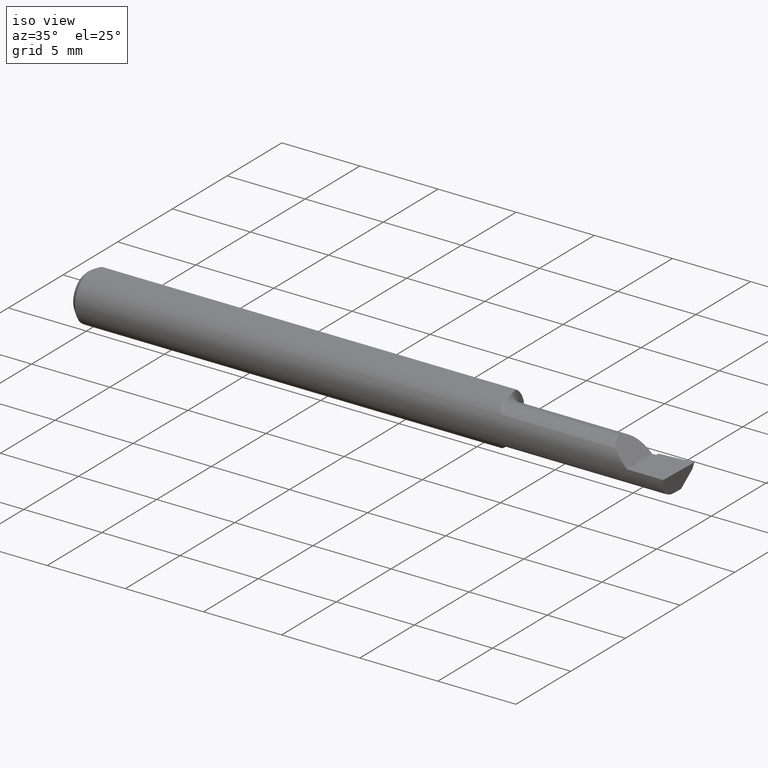
[diagram: clean part render]
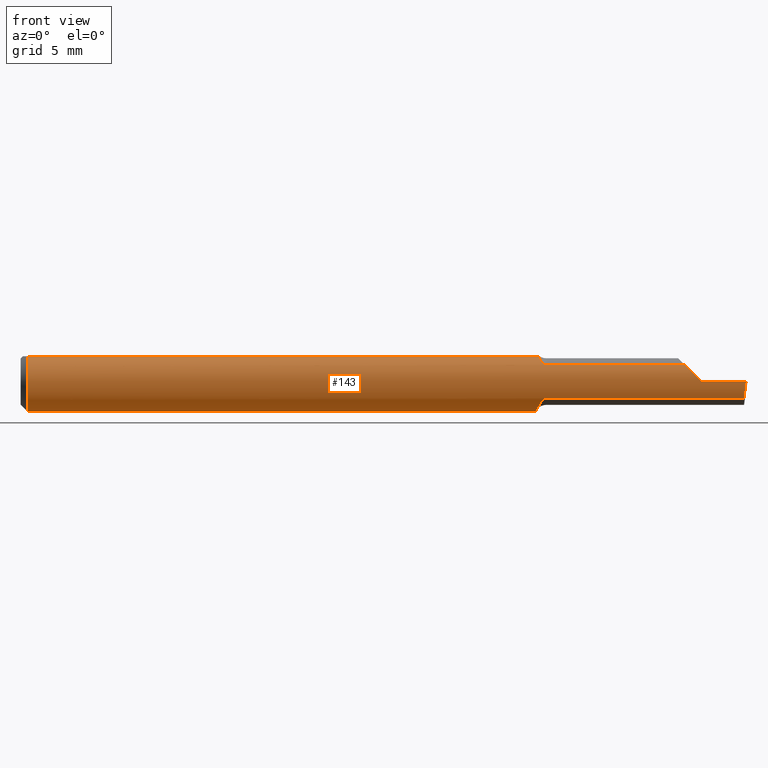
[diagram: tour spotlight — one face highlighted and labeled with its STEP entity id]
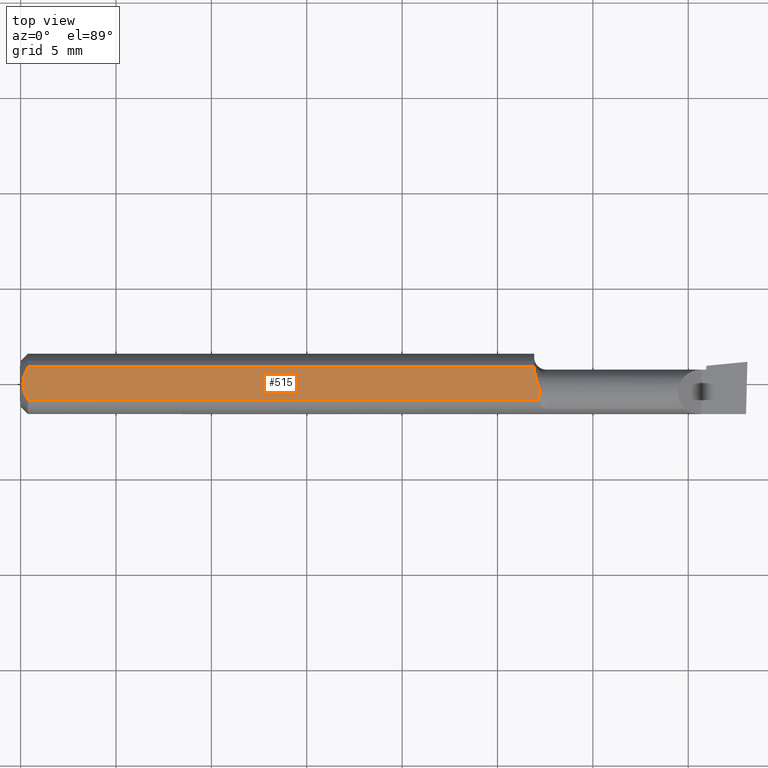
[diagram: tour spotlight — one face highlighted and labeled with its STEP entity id]
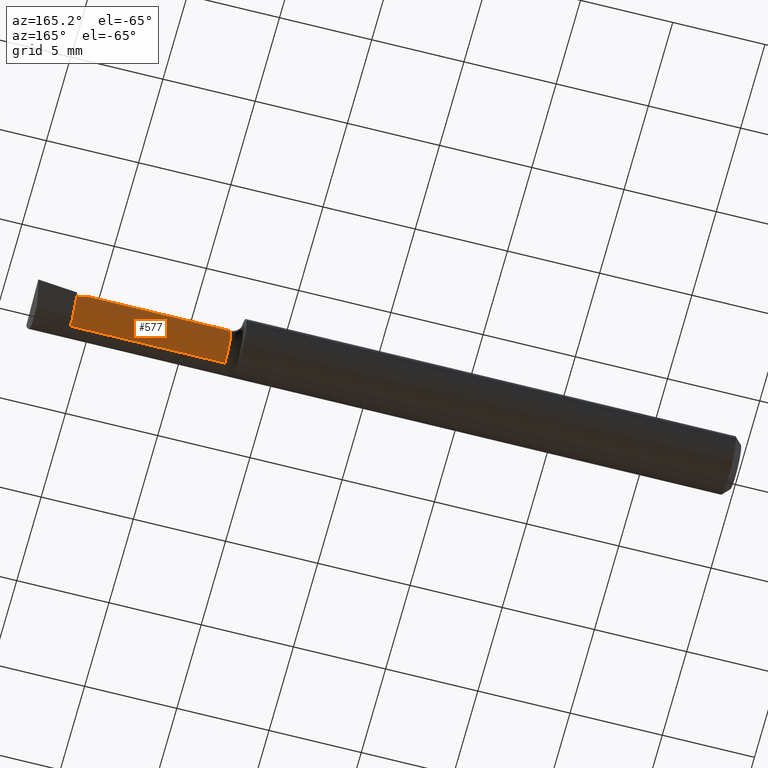
[diagram: tour spotlight — one face highlighted and labeled with its STEP entity id]
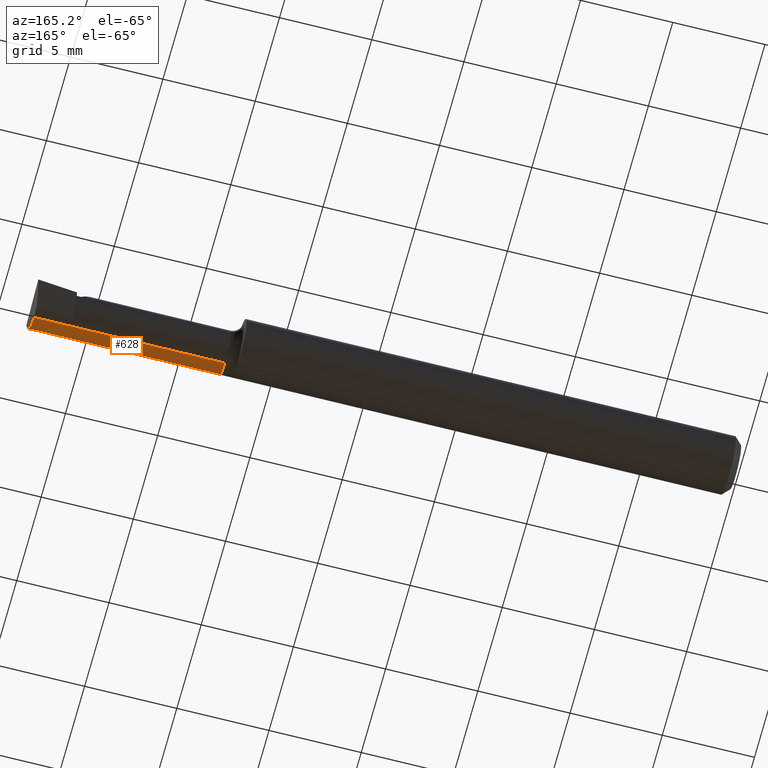
[diagram: tour spotlight — one face highlighted and labeled with its STEP entity id]
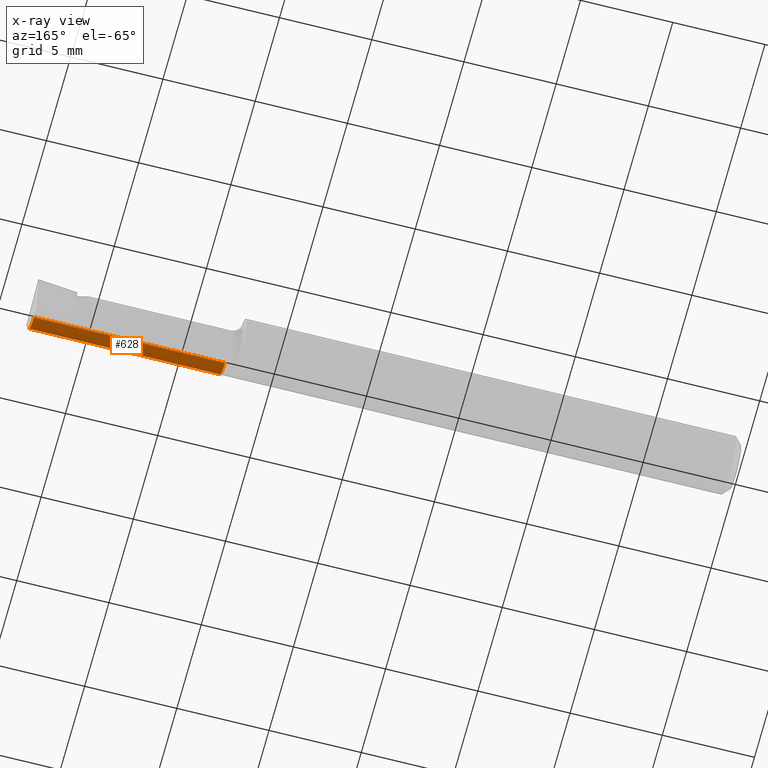
[diagram: x-ray of the same camera — body ghosted, this tour face saturated]
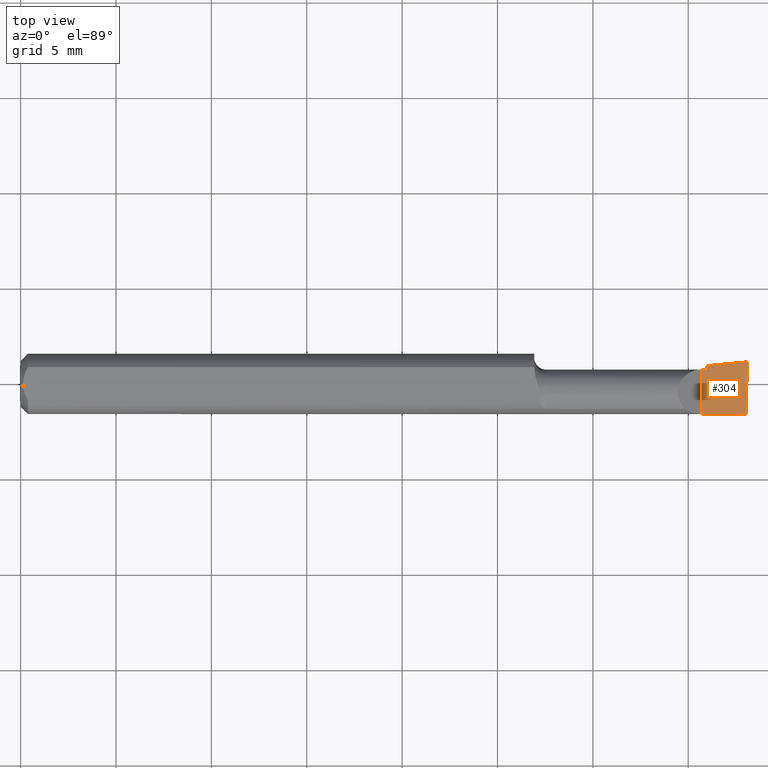
[diagram: tour spotlight — one face highlighted and labeled with its STEP entity id]
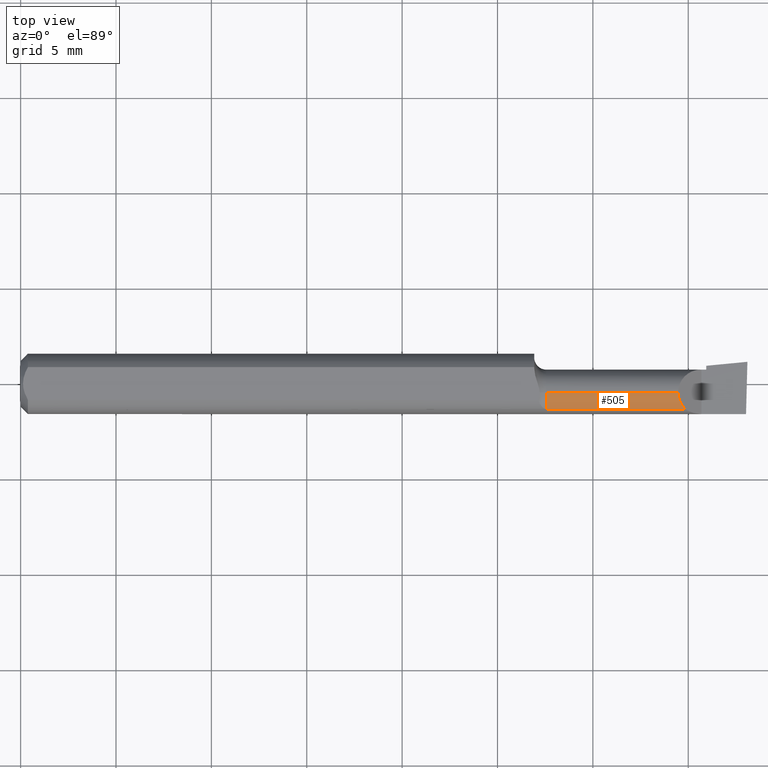
[diagram: tour spotlight — one face highlighted and labeled with its STEP entity id]
A machine part: a face-by-face anatomy tour. The part has 21 B-rep faces; the first image is the clean iso view, then the 6 largest visible faces are spotlighted one at a time (largest first), each with its STEP entity span.

Face 1 — front view, entity #143. In plain terms, the highlighted cylindrical surface (edge-blend (fillet) strip) has radius 1.5837 mm, axis along (-1, -0, -0).
Definition (entity closure, byte-faithful):
#10 = DIRECTION ( 'NONE',  ( -1.000000000000000000, -0.0000000000000000000, -0.0000000000000000000 ) ) ;
#15 = ORIENTED_EDGE ( 'NONE', *, *, #163, .T. ) ;
#17 = EDGE_CURVE ( 'NONE', #39, #714, #247, .T. ) ;
#22 = EDGE_CURVE ( 'NONE', #50, #696, #447, .T. ) ;
#38 = CARTESIAN_POINT ( 'NONE',  ( 1.062386060865227577, -0.01052139226165769992, -0.06200658662318050268 ) ) ;
#39 = VERTEX_POINT ( 'NONE', #439 ) ;
#50 = VERTEX_POINT ( 'NONE', #338 ) ;
#51 = CARTESIAN_POINT ( 'NONE',  ( 1.067774730512700998, -0.03308328010062949742, -0.05299899880320897705 ) ) ;
#67 = CARTESIAN_POINT ( 'NONE',  ( 1.060000000000000275, 0.03386738844375224156, 0.05235000000000000070 ) ) ;
#74 =( BOUNDED_CURVE ( )  B_SPLINE_CURVE ( 3, ( #680, #553, #178, #448 ),
 .UNSPECIFIED., .F., .F. ) 
 B_SPLINE_CURVE_WITH_KNOTS ( ( 4, 4 ),
 ( 4.712388980384689674, 5.293951277779024522 ),
 .UNSPECIFIED. ) 
 CURVE ( )  GEOMETRIC_REPRESENTATION_ITEM ( )  RATIONAL_B_SPLINE_CURVE ( ( 1.000000000000000000, 0.9720134746468970244, 0.9720134746468970244, 1.000000000000000000 ) ) 
 REPRESENTATION_ITEM ( '' )  );
#95 = EDGE_CURVE ( 'NONE', #50, #392, #507, .T. ) ;
#96 = CIRCLE ( 'NONE', #329, 0.06235000000000000264 ) ;
#97 = CARTESIAN_POINT ( 'NONE',  ( 1.497171920470529161, -0.06235000000000005121, 3.552677088412731724E-19 ) ) ;
#105 = EDGE_CURVE ( 'NONE', #254, #486, #226, .T. ) ;
#108 = CARTESIAN_POINT ( 'NONE',  ( 1.069002343694370749, -0.03635371779854199015, -0.05080473676934862959 ) ) ;
#131 = DIRECTION ( 'NONE',  ( 1.000000000000000000, 0.0000000000000000000, 0.0000000000000000000 ) ) ;
#138 = EDGE_LOOP ( 'NONE', ( #348, #332, #155, #511, #296, #472, #15, #383, #626, #522, #558, #321, #326 ) ) ;
#143 = ADVANCED_FACE ( 'NONE', ( #389 ), #576, .T. ) ;
#146 = CARTESIAN_POINT ( 'NONE',  ( 1.076602410087811545, -0.04843664215652594002, 0.03931692004732156159 ) ) ;
#149 = CARTESIAN_POINT ( 'NONE',  ( 1.071579710012544595, -0.04200879032723220385, 0.04631940421101472111 ) ) ;
#155 = ORIENTED_EDGE ( 'NONE', *, *, #384, .T. ) ;
#159 = LINE ( 'NONE', #695, #647 ) ;
#163 = EDGE_CURVE ( 'NONE', #466, #187, #159, .T. ) ;
#164 = DIRECTION ( 'NONE',  ( -1.000000000000000000, -0.0000000000000000000, -0.0000000000000000000 ) ) ;
#165 = B_SPLINE_CURVE_WITH_KNOTS ( 'NONE', 3,
 ( #527, #704, #149, #255, #146, #361, #421, #653, #517, #370 ),
 .UNSPECIFIED., .F., .F.,
 ( 4, 2, 2, 2, 4 ),
 ( 3.799952872694191753E-07, 0.0004056523638566329184, 0.0006082885481413145791, 0.0007096066402836554094, 0.0008109247324259961313 ),
 .UNSPECIFIED. ) ;
#167 = CARTESIAN_POINT ( 'NONE',  ( 1.060000000000000275, 0.0000000000000000000, 0.0000000000000000000 ) ) ;
#172 = DIRECTION ( 'NONE',  ( 1.000000000000000000, 0.0000000000000000000, 0.0000000000000000000 ) ) ;
#174 = DIRECTION ( 'NONE',  ( -1.000000000000000000, -0.0000000000000000000, -0.0000000000000000000 ) ) ;
#178 = CARTESIAN_POINT ( 'NONE',  ( 1.380994055934046782, -0.05883495956508445063, 0.02400594406595332048 ) ) ;
#182 = VECTOR ( 'NONE', #131, 39.37007874015748143 ) ;
#184 = AXIS2_PLACEMENT_3D ( 'NONE', #167, #172, #670 ) ;
#187 = VERTEX_POINT ( 'NONE', #193 ) ;
#193 = CARTESIAN_POINT ( 'NONE',  ( 0.01500000000000185039, -0.03386738844380016850, 0.05235000000000000070 ) ) ;
#195 = LINE ( 'NONE', #538, #204 ) ;
#204 = VECTOR ( 'NONE', #164, 39.37007874015748143 ) ;
#205 = CARTESIAN_POINT ( 'NONE',  ( 1.060000000000000275, 0.03016902173913028548, -0.05456512281030699574 ) ) ;
#216 = CARTESIAN_POINT ( 'NONE',  ( 1.063943527499067399, -0.01839999999999995459, -0.05957316929625283003 ) ) ;
#219 = CARTESIAN_POINT ( 'NONE',  ( 1.064710485888420877, -0.02227973916747847880, -0.05837485801745210395 ) ) ;
#222 = VERTEX_POINT ( 'NONE', #344 ) ;
#226 = LINE ( 'NONE', #391, #182 ) ;
#240 = CARTESIAN_POINT ( 'NONE',  ( 1.063943527499067399, -0.01839999999999995459, -0.05957316929625283003 ) ) ;
#245 = EDGE_CURVE ( 'NONE', #674, #638, #595, .T. ) ;
#247 =( BOUNDED_CURVE ( )  B_SPLINE_CURVE ( 3, ( #388, #611, #436, #542 ),
 .UNSPECIFIED., .F., .T. ) 
 B_SPLINE_CURVE_WITH_KNOTS ( ( 4, 4 ),
 ( 0.7791845851203693663, 1.360746882514708211 ),
 .UNSPECIFIED. ) 
 CURVE ( )  GEOMETRIC_REPRESENTATION_ITEM ( )  RATIONAL_B_SPLINE_CURVE ( ( 1.000000000000000000, 0.9720134746468966913, 0.9720134746468966913, 1.000000000000000000 ) ) 
 REPRESENTATION_ITEM ( '' )  );
#254 = VERTEX_POINT ( 'NONE', #646 ) ;
#255 = CARTESIAN_POINT ( 'NONE',  ( 1.075232443815719474, -0.04692169178955599151, 0.04112849538229054747 ) ) ;
#258 = CARTESIAN_POINT ( 'NONE',  ( 1.060000000000000275, 0.02282614954852003886, -0.05862499217990971290 ) ) ;
#259 = EDGE_CURVE ( 'NONE', #466, #254, #165, .T. ) ;
#282 = CIRCLE ( 'NONE', #184, 0.06235000000000000264 ) ;
#295 = DIRECTION ( 'NONE',  ( -1.000000000000000000, -0.0000000000000000000, -0.0000000000000000000 ) ) ;
#296 = ORIENTED_EDGE ( 'NONE', *, *, #105, .F. ) ;
#300 = DIRECTION ( 'NONE',  ( -1.000000000000000000, -0.0000000000000000000, -0.0000000000000000000 ) ) ;
#315 = EDGE_CURVE ( 'NONE', #222, #674, #433, .T. ) ;
#321 = ORIENTED_EDGE ( 'NONE', *, *, #245, .F. ) ;
#324 = DIRECTION ( 'NONE',  ( 0.0000000000000000000, 0.0000000000000000000, 1.000000000000000000 ) ) ;
#326 = ORIENTED_EDGE ( 'NONE', *, *, #315, .F. ) ;
#329 = AXIS2_PLACEMENT_3D ( 'NONE', #608, #10, #324 ) ;
#332 = ORIENTED_EDGE ( 'NONE', *, *, #17, .T. ) ;
#333 = DIRECTION ( 'NONE',  ( -1.000000000000000000, -0.0000000000000000000, -0.0000000000000000000 ) ) ;
#338 = CARTESIAN_POINT ( 'NONE',  ( 0.01500000000000000465, 0.03386738844375223462, 0.05234999999999997988 ) ) ;
#344 = CARTESIAN_POINT ( 'NONE',  ( 1.085000000000000187, -0.05210000000000013926, -0.03425072991922926968 ) ) ;
#348 = ORIENTED_EDGE ( 'NONE', *, *, #476, .F. ) ;
#351 = EDGE_CURVE ( 'NONE', #638, #392, #282, .T. ) ;
#361 = CARTESIAN_POINT ( 'NONE',  ( 1.079178979635574631, -0.05033758282015991792, 0.03680695256572113355 ) ) ;
#370 = CARTESIAN_POINT ( 'NONE',  ( 1.085000000000000187, -0.05210000000000012538, 0.03425072991922926968 ) ) ;
#376 = CARTESIAN_POINT ( 'NONE',  ( 1.076855754336165871, -0.04856891343705593833, -0.03913748562448255558 ) ) ;
#377 = CARTESIAN_POINT ( 'NONE',  ( 1.065629458297511656, -0.02606820000987079139, -0.05677892429946720249 ) ) ;
#383 = ORIENTED_EDGE ( 'NONE', *, *, #393, .F. ) ;
#384 = EDGE_CURVE ( 'NONE', #714, #502, #195, .T. ) ;
#388 = CARTESIAN_POINT ( 'NONE',  ( 1.493233423732482024, -0.05210000000000004211, -0.03425072991922938764 ) ) ;
#389 = FACE_OUTER_BOUND ( 'NONE', #138, .T. ) ;
#391 = CARTESIAN_POINT ( 'NONE',  ( 1.250000000000000000, -0.05210000000000004211, 0.03425072991922938764 ) ) ;
#392 = VERTEX_POINT ( 'NONE', #67 ) ;
#393 = EDGE_CURVE ( 'NONE', #696, #187, #96, .T. ) ;
#404 = CARTESIAN_POINT ( 'NONE',  ( 1.405000000000000249, -0.06235000000000005121, 1.163414459189982046E-17 ) ) ;
#418 = CARTESIAN_POINT ( 'NONE',  ( 1.085000000000000187, -0.05210000000000013926, -0.03425072991922926968 ) ) ;
#421 = CARTESIAN_POINT ( 'NONE',  ( 1.080111704662779282, -0.05090166660896882495, 0.03601608024180050216 ) ) ;
#428 = CARTESIAN_POINT ( 'NONE',  ( 1.081001860247194912, -0.05138041438525051824, -0.03535223831097218661 ) ) ;
#433 = B_SPLINE_CURVE_WITH_KNOTS ( 'NONE', 3,
 ( #418, #655, #428, #594, #376, #711, #715, #108, #51, #377, #219, #216 ),
 .UNSPECIFIED., .F., .F.,
 ( 4, 2, 2, 2, 2, 4 ),
 ( 1.968188672663559732E-07, 0.0001598826679621226507, 0.0003195685170569789388, 0.0006389402152466972613, 0.0009583119134364159091, 0.001277683611626134448 ),
 .UNSPECIFIED. ) ;
#436 = CARTESIAN_POINT ( 'NONE',  ( 1.495666027076596238, -0.06235000000000000264, -0.01226031473995684365 ) ) ;
#439 = CARTESIAN_POINT ( 'NONE',  ( 1.493233423732482024, -0.05210000000000004211, -0.03425072991922938764 ) ) ;
#447 = CIRCLE ( 'NONE', #651, 0.06235000000000000264 ) ;
#448 = CARTESIAN_POINT ( 'NONE',  ( 1.370749270080770632, -0.05210000000000018783, 0.03425072991922922805 ) ) ;
#455 = EDGE_CURVE ( 'NONE', #502, #486, #74, .T. ) ;
#464 = VECTOR ( 'NONE', #512, 39.37007874015748143 ) ;
#466 = VERTEX_POINT ( 'NONE', #541 ) ;
#472 = ORIENTED_EDGE ( 'NONE', *, *, #259, .F. ) ;
#473 = CARTESIAN_POINT ( 'NONE',  ( 1.060208269291442296, 0.01460127996857736588, -0.06118787137580494057 ) ) ;
#476 = EDGE_CURVE ( 'NONE', #39, #222, #667, .T. ) ;
#486 = VERTEX_POINT ( 'NONE', #503 ) ;
#502 = VERTEX_POINT ( 'NONE', #404 ) ;
#503 = CARTESIAN_POINT ( 'NONE',  ( 1.370749270080770632, -0.05210000000000018783, 0.03425072991922922805 ) ) ;
#504 = CARTESIAN_POINT ( 'NONE',  ( 1.060000000000000275, 0.03016902173913028548, -0.05456512281030699574 ) ) ;
#507 = LINE ( 'NONE', #629, #464 ) ;
#511 = ORIENTED_EDGE ( 'NONE', *, *, #455, .T. ) ;
#512 = DIRECTION ( 'NONE',  ( 1.000000000000000000, 0.0000000000000000000, 0.0000000000000000000 ) ) ;
#517 = CARTESIAN_POINT ( 'NONE',  ( 1.083628380198574215, -0.05210000000115977414, 0.03425072991746579143 ) ) ;
#522 = ORIENTED_EDGE ( 'NONE', *, *, #95, .T. ) ;
#527 = CARTESIAN_POINT ( 'NONE',  ( 1.068143989668697280, -0.03386738844377056717, 0.05235000000000000070 ) ) ;
#534 = CARTESIAN_POINT ( 'NONE',  ( 0.01500000000000000465, 0.0000000000000000000, 0.0000000000000000000 ) ) ;
#538 = CARTESIAN_POINT ( 'NONE',  ( 2.249639673992775738E-32, -0.06234999999999999570, 1.836970198721025250E-16 ) ) ;
#541 = CARTESIAN_POINT ( 'NONE',  ( 1.068143989668697280, -0.03386738844377056717, 0.05235000000000000070 ) ) ;
#542 = CARTESIAN_POINT ( 'NONE',  ( 1.497171920470529161, -0.06235000000000005121, 3.552677088412731724E-19 ) ) ;
#551 = DIRECTION ( 'NONE',  ( 0.0000000000000000000, 0.0000000000000000000, 1.000000000000000000 ) ) ;
#552 = CARTESIAN_POINT ( 'NONE',  ( 1.250000000000000000, -0.05210000000000004211, -0.03425072991922938764 ) ) ;
#553 = CARTESIAN_POINT ( 'NONE',  ( 1.392739685260043325, -0.06235000000000000264, 0.01226031473995677773 ) ) ;
#558 = ORIENTED_EDGE ( 'NONE', *, *, #351, .F. ) ;
#566 = CARTESIAN_POINT ( 'NONE',  ( 0.0000000000000000000, 0.0000000000000000000, 0.0000000000000000000 ) ) ;
#576 = CYLINDRICAL_SURFACE ( 'NONE', #599, 0.06235000000000000264 ) ;
#589 = CARTESIAN_POINT ( 'NONE',  ( 1.063943527499067399, -0.01839999999999995459, -0.05957316929625283003 ) ) ;
#594 = CARTESIAN_POINT ( 'NONE',  ( 1.078063614445013529, -0.04963912592730903434, -0.03775824298307037946 ) ) ;
#595 = B_SPLINE_CURVE_WITH_KNOTS ( 'NONE', 3,
 ( #589, #38, #701, #473, #258, #205 ),
 .UNSPECIFIED., .F., .F.,
 ( 4, 2, 4 ),
 ( 0.001277683611626134448, 0.001926233481642347384, 0.002574783351658560537 ),
 .UNSPECIFIED. ) ;
#599 = AXIS2_PLACEMENT_3D ( 'NONE', #566, #295, #688 ) ;
#608 = CARTESIAN_POINT ( 'NONE',  ( 0.01500000000000000465, 0.0000000000000000000, 0.0000000000000000000 ) ) ;
#611 = CARTESIAN_POINT ( 'NONE',  ( 1.494315395341277553, -0.05883495956508440206, -0.02400594406595346966 ) ) ;
#626 = ORIENTED_EDGE ( 'NONE', *, *, #22, .F. ) ;
#629 = CARTESIAN_POINT ( 'NONE',  ( 0.0000000000000000000, 0.03386738844375223462, 0.05234999999999997988 ) ) ;
#638 = VERTEX_POINT ( 'NONE', #504 ) ;
#646 = CARTESIAN_POINT ( 'NONE',  ( 1.085000000000000187, -0.05210000000000012538, 0.03425072991922926968 ) ) ;
#647 = VECTOR ( 'NONE', #300, 39.37007874015748143 ) ;
#651 = AXIS2_PLACEMENT_3D ( 'NONE', #534, #174, #551 ) ;
#653 = CARTESIAN_POINT ( 'NONE',  ( 1.082325466551639970, -0.05179156103573022418, 0.03472422648579310406 ) ) ;
#655 = CARTESIAN_POINT ( 'NONE',  ( 1.082870800850614490, -0.05210000000000013232, -0.03425072991922927662 ) ) ;
#667 = LINE ( 'NONE', #552, #677 ) ;
#670 = DIRECTION ( 'NONE',  ( 0.0000000000000000000, 0.0000000000000000000, -1.000000000000000000 ) ) ;
#674 = VERTEX_POINT ( 'NONE', #240 ) ;
#677 = VECTOR ( 'NONE', #333, 39.37007874015748143 ) ;
#680 = CARTESIAN_POINT ( 'NONE',  ( 1.405000000000000249, -0.06235000000000005121, 1.163414459189982046E-17 ) ) ;
#688 = DIRECTION ( 'NONE',  ( 0.0000000000000000000, 0.0000000000000000000, 1.000000000000000000 ) ) ;
#694 = CARTESIAN_POINT ( 'NONE',  ( 0.01500000000000000465, 0.0000000000000000000, -0.06235000000000000264 ) ) ;
#695 = CARTESIAN_POINT ( 'NONE',  ( 0.0000000000000000000, -0.03386738844375222768, 0.05234999999999997988 ) ) ;
#696 = VERTEX_POINT ( 'NONE', #694 ) ;
#701 = CARTESIAN_POINT ( 'NONE',  ( 1.061396250014342124, -0.002002297547419304002, -0.06287403108402092600 ) ) ;
#704 = CARTESIAN_POINT ( 'NONE',  ( 1.069741742128376139, -0.03819491529868385832, 0.04955034320923033114 ) ) ;
#711 = CARTESIAN_POINT ( 'NONE',  ( 1.073631399483170101, -0.04510599191766689192, -0.04319271381807388011 ) ) ;
#714 = VERTEX_POINT ( 'NONE', #97 ) ;
#715 = CARTESIAN_POINT ( 'NONE',  ( 1.071960678340712958, -0.04239780856895208894, -0.04588180363204272250 ) ) ;

Face 2 — top view, entity #515. In plain terms, the highlighted planar face has unit normal (0, -0, -1).
Definition (entity closure, byte-faithful):
#13 = CARTESIAN_POINT ( 'NONE',  ( 1.070168994702040521, -0.01001121285792181195, 0.05235000000000001458 ) ) ;
#18 = PLANE ( 'NONE',  #703 ) ;
#19 = CARTESIAN_POINT ( 'NONE',  ( 1.070981797547136738, -0.01840000000000274055, 0.05235000000000000070 ) ) ;
#20 = CARTESIAN_POINT ( 'NONE',  ( 1.060000000000000275, 0.1123499999999999915, 0.05234999999999998682 ) ) ;
#29 = EDGE_CURVE ( 'NONE', #581, #601, #265, .T. ) ;
#46 = CARTESIAN_POINT ( 'NONE',  ( 0.01500000000000000465, 0.03386738844375223462, 0.05234999999999997988 ) ) ;
#50 = VERTEX_POINT ( 'NONE', #338 ) ;
#54 = CARTESIAN_POINT ( 'NONE',  ( 1.068925984400744600, -0.03134776909451144483, 0.05235000000000000070 ) ) ;
#60 = ORIENTED_EDGE ( 'NONE', *, *, #163, .F. ) ;
#65 = CARTESIAN_POINT ( 'NONE',  ( 1.060000000000000275, 0.03254879782683783168, 0.05235000000000000070 ) ) ;
#67 = CARTESIAN_POINT ( 'NONE',  ( 1.060000000000000275, 0.03386738844375224156, 0.05235000000000000070 ) ) ;
#73 = DIRECTION ( 'NONE',  ( 0.0000000000000000000, 1.000000000000000000, -7.598598113218357399E-17 ) ) ;
#86 = CARTESIAN_POINT ( 'NONE',  ( 0.01216137397042175820, -0.02864146636719541034, 0.05235000000000000070 ) ) ;
#91 = CARTESIAN_POINT ( 'NONE',  ( 1.060000000000000275, 0.03254879782683783168, 0.05235000000000000070 ) ) ;
#93 = CARTESIAN_POINT ( 'NONE',  ( 0.004999999999989931769, 7.898418181085889318E-16, 0.05235000000000000070 ) ) ;
#95 = EDGE_CURVE ( 'NONE', #50, #392, #507, .T. ) ;
#121 = CARTESIAN_POINT ( 'NONE',  ( 1.066444485955765575, 0.002321921504987078423, 0.05235000000000000070 ) ) ;
#122 = ORIENTED_EDGE ( 'NONE', *, *, #132, .F. ) ;
#124 = DIRECTION ( 'NONE',  ( 0.0000000000000000000, -1.000000000000000000, 7.598598113218357399E-17 ) ) ;
#127 = CARTESIAN_POINT ( 'NONE',  ( 1.068472688040297269, -0.003926822060867487217, 0.05235000000000000070 ) ) ;
#132 = EDGE_CURVE ( 'NONE', #187, #301, #371, .T. ) ;
#133 = VECTOR ( 'NONE', #124, 39.37007874015748143 ) ;
#153 = CARTESIAN_POINT ( 'NONE',  ( 1.070981797547136738, -0.01840000000000274055, 0.05235000000000000070 ) ) ;
#159 = LINE ( 'NONE', #695, #647 ) ;
#163 = EDGE_CURVE ( 'NONE', #466, #187, #159, .T. ) ;
#180 = DIRECTION ( 'NONE',  ( 0.0000000000000000000, -7.598598113218357399E-17, -1.000000000000000000 ) ) ;
#187 = VERTEX_POINT ( 'NONE', #193 ) ;
#193 = CARTESIAN_POINT ( 'NONE',  ( 0.01500000000000185039, -0.03386738844380016850, 0.05235000000000000070 ) ) ;
#208 = CARTESIAN_POINT ( 'NONE',  ( 0.004999999999999268051, 0.005945714695019511074, 0.05235000000000000070 ) ) ;
#221 = ORIENTED_EDGE ( 'NONE', *, *, #29, .F. ) ;
#228 = CARTESIAN_POINT ( 'NONE',  ( 1.067828966321618278, -0.001899322570691681575, 0.05235000000000000070 ) ) ;
#250 = CARTESIAN_POINT ( 'NONE',  ( 0.01218518006020415795, 0.02868529347538067639, 0.05235000000000000070 ) ) ;
#264 = ORIENTED_EDGE ( 'NONE', *, *, #469, .F. ) ;
#265 = B_SPLINE_CURVE_WITH_KNOTS ( 'NONE', 3,
 ( #65, #557, #549, #334, #121, #228, #127, #13, #446, #19 ),
 .UNSPECIFIED., .F., .F.,
 ( 4, 2, 2, 2, 4 ),
 ( 0.008710904206567223612, 0.009350419755586170459, 0.009510298642840907604, 0.009670177530095643015, 0.009989935304605117306 ),
 .UNSPECIFIED. ) ;
#272 = LINE ( 'NONE', #20, #133 ) ;
#289 = CARTESIAN_POINT ( 'NONE',  ( 0.01500000000000185039, -0.03386738844380016850, 0.05235000000000000070 ) ) ;
#292 = EDGE_CURVE ( 'NONE', #301, #50, #477, .T. ) ;
#300 = DIRECTION ( 'NONE',  ( -1.000000000000000000, -0.0000000000000000000, -0.0000000000000000000 ) ) ;
#301 = VERTEX_POINT ( 'NONE', #585 ) ;
#314 = CARTESIAN_POINT ( 'NONE',  ( 1.068143989668697280, -0.03386738844377056717, 0.05235000000000000070 ) ) ;
#316 = CARTESIAN_POINT ( 'NONE',  ( 1.070981797547469139, -0.02106709414031692970, 0.05235000000000000070 ) ) ;
#318 = ORIENTED_EDGE ( 'NONE', *, *, #95, .F. ) ;
#320 = EDGE_CURVE ( 'NONE', #601, #466, #584, .T. ) ;
#334 = CARTESIAN_POINT ( 'NONE',  ( 1.065733277589589356, 0.004426912553965577264, 0.05234999999999998682 ) ) ;
#338 = CARTESIAN_POINT ( 'NONE',  ( 0.01500000000000000465, 0.03386738844375223462, 0.05234999999999997988 ) ) ;
#364 = CARTESIAN_POINT ( 'NONE',  ( 0.006064493299689842180, 0.01189382783781397189, 0.05235000000000000070 ) ) ;
#368 = ORIENTED_EDGE ( 'NONE', *, *, #320, .F. ) ;
#371 = B_SPLINE_CURVE_WITH_KNOTS ( 'NONE', 3,
 ( #289, #86, #410, #561, #564, #463 ),
 .UNSPECIFIED., .F., .F.,
 ( 4, 2, 4 ),
 ( 0.002133667072902290657, 0.002585433046183636171, 0.003037199019464981685 ),
 .UNSPECIFIED. ) ;
#392 = VERTEX_POINT ( 'NONE', #67 ) ;
#410 = CARTESIAN_POINT ( 'NONE',  ( 0.009678036133109307534, -0.02325481837211496039, 0.05235000000000000070 ) ) ;
#446 = CARTESIAN_POINT ( 'NONE',  ( 1.070981797547482239, -0.01413225355780891451, 0.05235000000000000070 ) ) ;
#451 = CARTESIAN_POINT ( 'NONE',  ( 1.500000000000000222, 0.1123499999999999915, 0.05234999999999998682 ) ) ;
#462 = CARTESIAN_POINT ( 'NONE',  ( 1.070981797547136738, -0.01840000000000274055, 0.05235000000000000070 ) ) ;
#463 = CARTESIAN_POINT ( 'NONE',  ( 0.004999999999989931769, 7.898418181085889318E-16, 0.05235000000000000070 ) ) ;
#464 = VECTOR ( 'NONE', #512, 39.37007874015748143 ) ;
#466 = VERTEX_POINT ( 'NONE', #541 ) ;
#469 = EDGE_CURVE ( 'NONE', #392, #581, #272, .T. ) ;
#475 = CARTESIAN_POINT ( 'NONE',  ( 1.070671187942868974, -0.02367561104898163044, 0.05235000000000000070 ) ) ;
#477 = B_SPLINE_CURVE_WITH_KNOTS ( 'NONE', 3,
 ( #93, #208, #364, #583, #250, #46 ),
 .UNSPECIFIED., .F., .F.,
 ( 4, 2, 4 ),
 ( 0.003037199019464981685, 0.003488061124369676216, 0.003938923229274370746 ),
 .UNSPECIFIED. ) ;
#501 = EDGE_LOOP ( 'NONE', ( #221, #264, #318, #616, #122, #60, #368 ) ) ;
#507 = LINE ( 'NONE', #629, #464 ) ;
#512 = DIRECTION ( 'NONE',  ( 1.000000000000000000, 0.0000000000000000000, 0.0000000000000000000 ) ) ;
#515 = ADVANCED_FACE ( 'NONE', ( #540 ), #18, .F. ) ;
#540 = FACE_OUTER_BOUND ( 'NONE', #501, .T. ) ;
#541 = CARTESIAN_POINT ( 'NONE',  ( 1.068143989668697280, -0.03386738844377056717, 0.05235000000000000070 ) ) ;
#549 = CARTESIAN_POINT ( 'NONE',  ( 1.062303760771541761, 0.01498942864105877633, 0.05235000000000000764 ) ) ;
#557 = CARTESIAN_POINT ( 'NONE',  ( 1.059999999999998943, 0.02370330699131448227, 0.05234999999999997988 ) ) ;
#561 = CARTESIAN_POINT ( 'NONE',  ( 0.006057557792978140489, -0.01187252718384441616, 0.05234999999999998682 ) ) ;
#564 = CARTESIAN_POINT ( 'NONE',  ( 0.004999999999998879473, -0.005957634400466955450, 0.05235000000000000070 ) ) ;
#581 = VERTEX_POINT ( 'NONE', #91 ) ;
#583 = CARTESIAN_POINT ( 'NONE',  ( 0.009669996313769784607, 0.02323004575534281385, 0.05234999999999998682 ) ) ;
#584 = B_SPLINE_CURVE_WITH_KNOTS ( 'NONE', 3,
 ( #153, #316, #475, #598, #54, #314 ),
 .UNSPECIFIED., .F., .F.,
 ( 4, 2, 4 ),
 ( 0.0004198066361325441002, 0.0006196367099741924072, 0.0008194667838158407143 ),
 .UNSPECIFIED. ) ;
#585 = CARTESIAN_POINT ( 'NONE',  ( 0.004999999999989931769, 7.898418181085889318E-16, 0.05235000000000000070 ) ) ;
#598 = CARTESIAN_POINT ( 'NONE',  ( 1.069639022305010290, -0.02881514531779550206, 0.05234999999999998682 ) ) ;
#601 = VERTEX_POINT ( 'NONE', #462 ) ;
#616 = ORIENTED_EDGE ( 'NONE', *, *, #292, .F. ) ;
#629 = CARTESIAN_POINT ( 'NONE',  ( 0.0000000000000000000, 0.03386738844375223462, 0.05234999999999997988 ) ) ;
#647 = VECTOR ( 'NONE', #300, 39.37007874015748143 ) ;
#695 = CARTESIAN_POINT ( 'NONE',  ( 0.0000000000000000000, -0.03386738844375222768, 0.05234999999999997988 ) ) ;
#703 = AXIS2_PLACEMENT_3D ( 'NONE', #451, #180, #73 ) ;

Face 3 — auxiliary view, entity #577. In plain terms, the highlighted cylindrical surface (edge-blend (fillet) strip) has radius 1.2205 mm, axis along (-1, -0, -0).
Definition (entity closure, byte-faithful):
#14 = VECTOR ( 'NONE', #203, 39.37007874015748143 ) ;
#41 = DIRECTION ( 'NONE',  ( 1.000000000000000000, 0.0000000000000000000, 0.0000000000000000000 ) ) ;
#59 = VERTEX_POINT ( 'NONE', #179 ) ;
#70 = AXIS2_PLACEMENT_3D ( 'NONE', #385, #118, #443 ) ;
#76 = CARTESIAN_POINT ( 'NONE',  ( 1.405000000000000249, 0.02964999999999991601, 1.163414459189982046E-17 ) ) ;
#87 = ORIENTED_EDGE ( 'NONE', *, *, #411, .T. ) ;
#90 = LINE ( 'NONE', #401, #209 ) ;
#106 = ORIENTED_EDGE ( 'NONE', *, *, #526, .T. ) ;
#118 = DIRECTION ( 'NONE',  ( 1.000000000000000000, 0.0000000000000000000, 0.0000000000000000000 ) ) ;
#129 = DIRECTION ( 'NONE',  ( 0.0000000000000000000, 0.0000000000000000000, 1.000000000000000000 ) ) ;
#142 = EDGE_CURVE ( 'NONE', #416, #662, #279, .T. ) ;
#151 = VERTEX_POINT ( 'NONE', #686 ) ;
#162 = AXIS2_PLACEMENT_3D ( 'NONE', #406, #457, #630 ) ;
#179 = CARTESIAN_POINT ( 'NONE',  ( 1.415000000000000036, 0.02964999999999999233, 1.836970198721026236E-16 ) ) ;
#181 = DIRECTION ( 'NONE',  ( -1.000000000000000000, -0.0000000000000000000, -0.0000000000000000000 ) ) ;
#188 = VERTEX_POINT ( 'NONE', #454 ) ;
#190 = CARTESIAN_POINT ( 'NONE',  ( 1.356949999999999878, -0.01839999999999999969, 0.04804999999999998161 ) ) ;
#194 = CARTESIAN_POINT ( 'NONE',  ( 1.415000000000000036, 0.007456147106387301521, -0.04050015008383126003 ) ) ;
#199 = DIRECTION ( 'NONE',  ( -1.000000000000000000, -0.0000000000000000000, -0.0000000000000000000 ) ) ;
#201 = AXIS2_PLACEMENT_3D ( 'NONE', #287, #499, #129 ) ;
#203 = DIRECTION ( 'NONE',  ( -1.000000000000000000, -0.0000000000000000000, -0.0000000000000000000 ) ) ;
#207 = ORIENTED_EDGE ( 'NONE', *, *, #281, .T. ) ;
#209 = VECTOR ( 'NONE', #181, 39.37007874015748143 ) ;
#233 = AXIS2_PLACEMENT_3D ( 'NONE', #394, #199, #409 ) ;
#236 = VERTEX_POINT ( 'NONE', #305 ) ;
#241 = VECTOR ( 'NONE', #41, 39.37007874015748143 ) ;
#251 = LINE ( 'NONE', #257, #241 ) ;
#257 = CARTESIAN_POINT ( 'NONE',  ( 2.249639673992775738E-32, 0.02964999999999997499, 1.836970198721025250E-16 ) ) ;
#274 = EDGE_CURVE ( 'NONE', #416, #188, #600, .T. ) ;
#279 =( BOUNDED_CURVE ( )  B_SPLINE_CURVE ( 3, ( #190, #631, #355, #76 ),
 .UNSPECIFIED., .F., .F. ) 
 B_SPLINE_CURVE_WITH_KNOTS ( ( 4, 4 ),
 ( 0.0000000000000000000, 1.570796326794896558 ),
 .UNSPECIFIED. ) 
 CURVE ( )  GEOMETRIC_REPRESENTATION_ITEM ( )  RATIONAL_B_SPLINE_CURVE ( ( 1.000000000000000000, 0.8047378541243649375, 0.8047378541243649375, 1.000000000000000000 ) ) 
 REPRESENTATION_ITEM ( '' )  );
#281 = EDGE_CURVE ( 'NONE', #662, #59, #251, .T. ) ;
#285 = CYLINDRICAL_SURFACE ( 'NONE', #233, 0.04804999999999998161 ) ;
#287 = CARTESIAN_POINT ( 'NONE',  ( 1.415000000000000036, -0.01839999999999999969, 0.0000000000000000000 ) ) ;
#305 = CARTESIAN_POINT ( 'NONE',  ( 1.415000000000000036, 0.02286474879319034398, -0.02461753454420028894 ) ) ;
#306 = CIRCLE ( 'NONE', #162, 0.04804999999999996080 ) ;
#322 = FACE_OUTER_BOUND ( 'NONE', #649, .T. ) ;
#340 = CIRCLE ( 'NONE', #381, 0.04805000000000000243 ) ;
#355 = CARTESIAN_POINT ( 'NONE',  ( 1.376852961672026865, 0.02964999999999998540, 0.02814703832797277663 ) ) ;
#381 = AXIS2_PLACEMENT_3D ( 'NONE', #434, #437, #484 ) ;
#385 = CARTESIAN_POINT ( 'NONE',  ( 1.415000000000000036, -0.01839999999999999969, 0.0000000000000000000 ) ) ;
#390 = ORIENTED_EDGE ( 'NONE', *, *, #274, .F. ) ;
#394 = CARTESIAN_POINT ( 'NONE',  ( 0.0000000000000000000, -0.01839999999999999969, 0.0000000000000000000 ) ) ;
#401 = CARTESIAN_POINT ( 'NONE',  ( 0.0000000000000000000, -0.01839999999999999275, -0.04804999999999998161 ) ) ;
#405 = CIRCLE ( 'NONE', #201, 0.04805000000000000243 ) ;
#406 = CARTESIAN_POINT ( 'NONE',  ( 1.085000000000000187, -0.01839999999999999969, 0.0000000000000000000 ) ) ;
#408 = EDGE_CURVE ( 'NONE', #683, #236, #498, .T. ) ;
#409 = DIRECTION ( 'NONE',  ( 0.0000000000000000000, 0.0000000000000000000, 1.000000000000000000 ) ) ;
#411 = EDGE_CURVE ( 'NONE', #59, #236, #340, .T. ) ;
#416 = VERTEX_POINT ( 'NONE', #487 ) ;
#434 = CARTESIAN_POINT ( 'NONE',  ( 1.415000000000000036, -0.01839999999999999969, 0.0000000000000000000 ) ) ;
#437 = DIRECTION ( 'NONE',  ( -1.000000000000000000, -0.0000000000000000000, -0.0000000000000000000 ) ) ;
#438 = ORIENTED_EDGE ( 'NONE', *, *, #607, .F. ) ;
#443 = DIRECTION ( 'NONE',  ( 0.0000000000000000000, 0.0000000000000000000, 1.000000000000000000 ) ) ;
#454 = CARTESIAN_POINT ( 'NONE',  ( 1.085000000000000187, -0.01839999999999999969, 0.04804999999999996080 ) ) ;
#457 = DIRECTION ( 'NONE',  ( -1.000000000000000000, -0.0000000000000000000, -0.0000000000000000000 ) ) ;
#465 = CARTESIAN_POINT ( 'NONE',  ( 1.405000000000000249, 0.02964999999999991601, 1.163414459189982046E-17 ) ) ;
#484 = DIRECTION ( 'NONE',  ( 0.0000000000000000000, 0.0000000000000000000, 1.000000000000000000 ) ) ;
#487 = CARTESIAN_POINT ( 'NONE',  ( 1.356949999999999878, -0.01839999999999999969, 0.04804999999999998161 ) ) ;
#492 = VERTEX_POINT ( 'NONE', #624 ) ;
#498 = CIRCLE ( 'NONE', #70, 0.04804999999999998161 ) ;
#499 = DIRECTION ( 'NONE',  ( -1.000000000000000000, -0.0000000000000000000, -0.0000000000000000000 ) ) ;
#526 = EDGE_CURVE ( 'NONE', #683, #151, #405, .T. ) ;
#555 = ORIENTED_EDGE ( 'NONE', *, *, #574, .T. ) ;
#574 = EDGE_CURVE ( 'NONE', #151, #492, #90, .T. ) ;
#577 = ADVANCED_FACE ( 'NONE', ( #322 ), #285, .T. ) ;
#600 = LINE ( 'NONE', #642, #14 ) ;
#607 = EDGE_CURVE ( 'NONE', #188, #492, #306, .T. ) ;
#624 = CARTESIAN_POINT ( 'NONE',  ( 1.085000000000000187, -0.01839999999999999275, -0.04804999999999996080 ) ) ;
#630 = DIRECTION ( 'NONE',  ( 0.0000000000000000000, 0.0000000000000000000, 1.000000000000000000 ) ) ;
#631 = CARTESIAN_POINT ( 'NONE',  ( 1.356949999999999656, 0.009747038327972771740, 0.04804999999999998855 ) ) ;
#642 = CARTESIAN_POINT ( 'NONE',  ( 0.0000000000000000000, -0.01839999999999999969, 0.04804999999999998161 ) ) ;
#649 = EDGE_LOOP ( 'NONE', ( #106, #555, #438, #390, #665, #207, #87, #664 ) ) ;
#662 = VERTEX_POINT ( 'NONE', #465 ) ;
#664 = ORIENTED_EDGE ( 'NONE', *, *, #408, .F. ) ;
#665 = ORIENTED_EDGE ( 'NONE', *, *, #142, .T. ) ;
#683 = VERTEX_POINT ( 'NONE', #194 ) ;
#686 = CARTESIAN_POINT ( 'NONE',  ( 1.415000000000000036, -0.01839999999999999969, -0.04804999999999998855 ) ) ;

Face 4 — auxiliary view, entity #628. An x-ray twin of the same camera follows (body ghosted, this face saturated) — the face is partly hidden behind the body. In plain terms, the highlighted cylindrical surface (edge-blend (fillet) strip) has radius 1.2205 mm, axis along (-1, -0, -0).
Definition (entity closure, byte-faithful):
#39 = VERTEX_POINT ( 'NONE', #439 ) ;
#58 = ORIENTED_EDGE ( 'NONE', *, *, #224, .F. ) ;
#63 = CYLINDRICAL_SURFACE ( 'NONE', #524, 0.04804999999999998161 ) ;
#66 = EDGE_CURVE ( 'NONE', #692, #151, #232, .T. ) ;
#80 = CARTESIAN_POINT ( 'NONE',  ( 1.493233423732482024, -0.05210000000000004211, -0.03425072991922938764 ) ) ;
#83 = CARTESIAN_POINT ( 'NONE',  ( 0.0000000000000000000, -0.01839999999999999969, 0.0000000000000000000 ) ) ;
#90 = LINE ( 'NONE', #401, #209 ) ;
#110 = VECTOR ( 'NONE', #336, 39.37007874015748143 ) ;
#130 = ORIENTED_EDGE ( 'NONE', *, *, #476, .T. ) ;
#136 = CARTESIAN_POINT ( 'NONE',  ( 1.492371467082626024, -0.04299473640227066684, -0.04320958667840190531 ) ) ;
#151 = VERTEX_POINT ( 'NONE', #686 ) ;
#170 = CIRCLE ( 'NONE', #373, 0.04804999999999996080 ) ;
#181 = DIRECTION ( 'NONE',  ( -1.000000000000000000, -0.0000000000000000000, -0.0000000000000000000 ) ) ;
#209 = VECTOR ( 'NONE', #181, 39.37007874015748143 ) ;
#222 = VERTEX_POINT ( 'NONE', #344 ) ;
#223 = FACE_OUTER_BOUND ( 'NONE', #672, .T. ) ;
#224 = EDGE_CURVE ( 'NONE', #39, #692, #330, .T. ) ;
#232 = LINE ( 'NONE', #671, #110 ) ;
#275 = DIRECTION ( 'NONE',  ( -1.000000000000000000, -0.0000000000000000000, -0.0000000000000000000 ) ) ;
#276 = ORIENTED_EDGE ( 'NONE', *, *, #425, .F. ) ;
#291 = ORIENTED_EDGE ( 'NONE', *, *, #66, .F. ) ;
#330 =( BOUNDED_CURVE ( )  B_SPLINE_CURVE ( 3, ( #80, #136, #690, #407 ),
 .UNSPECIFIED., .F., .T. ) 
 B_SPLINE_CURVE_WITH_KNOTS ( ( 4, 4 ),
 ( 5.715941252449187715, 6.493234751459775467 ),
 .UNSPECIFIED. ) 
 CURVE ( )  GEOMETRIC_REPRESENTATION_ITEM ( )  RATIONAL_B_SPLINE_CURVE ( ( 1.000000000000000000, 0.9502818019828908058, 0.9502818019828908058, 1.000000000000000000 ) ) 
 REPRESENTATION_ITEM ( '' )  );
#333 = DIRECTION ( 'NONE',  ( -1.000000000000000000, -0.0000000000000000000, -0.0000000000000000000 ) ) ;
#336 = DIRECTION ( 'NONE',  ( -1.000000000000000000, 5.691349986800549142E-18, -0.0000000000000000000 ) ) ;
#344 = CARTESIAN_POINT ( 'NONE',  ( 1.085000000000000187, -0.05210000000000013926, -0.03425072991922926968 ) ) ;
#352 = DIRECTION ( 'NONE',  ( 0.0000000000000000000, 0.0000000000000000000, 1.000000000000000000 ) ) ;
#373 = AXIS2_PLACEMENT_3D ( 'NONE', #612, #275, #666 ) ;
#401 = CARTESIAN_POINT ( 'NONE',  ( 0.0000000000000000000, -0.01839999999999999275, -0.04804999999999998161 ) ) ;
#407 = CARTESIAN_POINT ( 'NONE',  ( 1.492420971165606458, -0.01839999999999999969, -0.04804999999999998855 ) ) ;
#425 = EDGE_CURVE ( 'NONE', #492, #222, #170, .T. ) ;
#439 = CARTESIAN_POINT ( 'NONE',  ( 1.493233423732482024, -0.05210000000000004211, -0.03425072991922938764 ) ) ;
#476 = EDGE_CURVE ( 'NONE', #39, #222, #667, .T. ) ;
#492 = VERTEX_POINT ( 'NONE', #624 ) ;
#494 = ORIENTED_EDGE ( 'NONE', *, *, #574, .F. ) ;
#516 = DIRECTION ( 'NONE',  ( -1.000000000000000000, -0.0000000000000000000, -0.0000000000000000000 ) ) ;
#524 = AXIS2_PLACEMENT_3D ( 'NONE', #83, #516, #352 ) ;
#552 = CARTESIAN_POINT ( 'NONE',  ( 1.250000000000000000, -0.05210000000000004211, -0.03425072991922938764 ) ) ;
#574 = EDGE_CURVE ( 'NONE', #151, #492, #90, .T. ) ;
#612 = CARTESIAN_POINT ( 'NONE',  ( 1.085000000000000187, -0.01839999999999999969, 0.0000000000000000000 ) ) ;
#624 = CARTESIAN_POINT ( 'NONE',  ( 1.085000000000000187, -0.01839999999999999275, -0.04804999999999996080 ) ) ;
#628 = ADVANCED_FACE ( 'NONE', ( #223 ), #63, .T. ) ;
#639 = CARTESIAN_POINT ( 'NONE',  ( 1.492420971165606458, -0.01839999999999999969, -0.04804999999999998855 ) ) ;
#666 = DIRECTION ( 'NONE',  ( 0.0000000000000000000, 0.0000000000000000000, 1.000000000000000000 ) ) ;
#667 = LINE ( 'NONE', #552, #677 ) ;
#671 = CARTESIAN_POINT ( 'NONE',  ( 1.500000000000000222, -0.01839999999999999969, -0.04804999999999998855 ) ) ;
#672 = EDGE_LOOP ( 'NONE', ( #494, #291, #58, #130, #276 ) ) ;
#677 = VECTOR ( 'NONE', #333, 39.37007874015748143 ) ;
#686 = CARTESIAN_POINT ( 'NONE',  ( 1.415000000000000036, -0.01839999999999999969, -0.04804999999999998855 ) ) ;
#690 = CARTESIAN_POINT ( 'NONE',  ( 1.492086480543131533, -0.03117368152160946565, -0.04805000000000000243 ) ) ;
#692 = VERTEX_POINT ( 'NONE', #639 ) ;

Face 5 — top view, entity #304. In plain terms, the highlighted planar face has unit normal (-0, 0, -1).
Definition (entity closure, byte-faithful):
#9 = EDGE_CURVE ( 'NONE', #502, #662, #648, .T. ) ;
#24 = DIRECTION ( 'NONE',  ( 0.0000000000000000000, 1.000000000000000000, 0.0000000000000000000 ) ) ;
#35 = ORIENTED_EDGE ( 'NONE', *, *, #9, .F. ) ;
#41 = DIRECTION ( 'NONE',  ( 1.000000000000000000, 0.0000000000000000000, 0.0000000000000000000 ) ) ;
#43 = CARTESIAN_POINT ( 'NONE',  ( 1.500000000000000222, -0.2500000000000000555, 0.0000000000000000000 ) ) ;
#59 = VERTEX_POINT ( 'NONE', #179 ) ;
#62 = VERTEX_POINT ( 'NONE', #497 ) ;
#97 = CARTESIAN_POINT ( 'NONE',  ( 1.497171920470529161, -0.06235000000000005121, 3.552677088412731724E-19 ) ) ;
#99 = DIRECTION ( 'NONE',  ( -1.000000000000000000, 0.0000000000000000000, 1.224646799147350495E-16 ) ) ;
#100 = LINE ( 'NONE', #622, #572 ) ;
#116 = AXIS2_PLACEMENT_3D ( 'NONE', #43, #708, #99 ) ;
#117 = EDGE_CURVE ( 'NONE', #714, #62, #415, .T. ) ;
#137 = CARTESIAN_POINT ( 'NONE',  ( 1.492263437268387616, -0.2497974109750948912, 9.474556785672067455E-19 ) ) ;
#164 = DIRECTION ( 'NONE',  ( -1.000000000000000000, -0.0000000000000000000, -0.0000000000000000000 ) ) ;
#179 = CARTESIAN_POINT ( 'NONE',  ( 1.415000000000000036, 0.02964999999999999233, 1.836970198721026236E-16 ) ) ;
#183 = DIRECTION ( 'NONE',  ( 0.9953961983671787417, 0.09584575252022461966, -1.219008768213806398E-16 ) ) ;
#195 = LINE ( 'NONE', #538, #204 ) ;
#204 = VECTOR ( 'NONE', #164, 39.37007874015748143 ) ;
#206 = VECTOR ( 'NONE', #544, 39.37007874015748143 ) ;
#218 = VECTOR ( 'NONE', #24, 39.37007874015748143 ) ;
#241 = VECTOR ( 'NONE', #41, 39.37007874015748143 ) ;
#251 = LINE ( 'NONE', #257, #241 ) ;
#257 = CARTESIAN_POINT ( 'NONE',  ( 2.249639673992775738E-32, 0.02964999999999997499, 1.836970198721025250E-16 ) ) ;
#268 = VECTOR ( 'NONE', #299, 39.37007874015748143 ) ;
#281 = EDGE_CURVE ( 'NONE', #662, #59, #251, .T. ) ;
#293 = CARTESIAN_POINT ( 'NONE',  ( 1.415000000000000036, 0.03746543090321039632, 1.856802933193678953E-16 ) ) ;
#299 = DIRECTION ( 'NONE',  ( 0.02617694830787629934, 0.9996573249755572599, -3.158139334224184651E-18 ) ) ;
#303 = CARTESIAN_POINT ( 'NONE',  ( 1.415000000000000036, -0.2500000000000000555, 1.040949779275248537E-17 ) ) ;
#304 = ADVANCED_FACE ( 'NONE', ( #331 ), #308, .F. ) ;
#308 = PLANE ( 'NONE',  #116 ) ;
#331 = FACE_OUTER_BOUND ( 'NONE', #441, .T. ) ;
#384 = EDGE_CURVE ( 'NONE', #714, #502, #195, .T. ) ;
#404 = CARTESIAN_POINT ( 'NONE',  ( 1.405000000000000249, -0.06235000000000005121, 1.163414459189982046E-17 ) ) ;
#415 = LINE ( 'NONE', #137, #268 ) ;
#441 = EDGE_LOOP ( 'NONE', ( #545, #618, #508, #539, #605, #35 ) ) ;
#465 = CARTESIAN_POINT ( 'NONE',  ( 1.405000000000000249, 0.02964999999999991601, 1.163414459189982046E-17 ) ) ;
#497 = CARTESIAN_POINT ( 'NONE',  ( 1.500000000000005551, 0.04565000000000926650, 2.869987729125137493E-14 ) ) ;
#502 = VERTEX_POINT ( 'NONE', #404 ) ;
#508 = ORIENTED_EDGE ( 'NONE', *, *, #546, .F. ) ;
#538 = CARTESIAN_POINT ( 'NONE',  ( 2.249639673992775738E-32, -0.06234999999999999570, 1.836970198721025250E-16 ) ) ;
#539 = ORIENTED_EDGE ( 'NONE', *, *, #699, .F. ) ;
#544 = DIRECTION ( 'NONE',  ( -0.0000000000000000000, 1.000000000000000000, -0.0000000000000000000 ) ) ;
#545 = ORIENTED_EDGE ( 'NONE', *, *, #384, .F. ) ;
#546 = EDGE_CURVE ( 'NONE', #590, #62, #100, .T. ) ;
#572 = VECTOR ( 'NONE', #183, 39.37007874015748143 ) ;
#590 = VERTEX_POINT ( 'NONE', #293 ) ;
#603 = CARTESIAN_POINT ( 'NONE',  ( 1.405000000000000249, -0.2500000000000000555, 1.163414459189982046E-17 ) ) ;
#605 = ORIENTED_EDGE ( 'NONE', *, *, #281, .F. ) ;
#614 = LINE ( 'NONE', #303, #218 ) ;
#618 = ORIENTED_EDGE ( 'NONE', *, *, #117, .T. ) ;
#622 = CARTESIAN_POINT ( 'NONE',  ( 0.8348153170171558335, -0.01839999999999999969, 8.146162928567849885E-17 ) ) ;
#648 = LINE ( 'NONE', #603, #206 ) ;
#662 = VERTEX_POINT ( 'NONE', #465 ) ;
#699 = EDGE_CURVE ( 'NONE', #59, #590, #614, .T. ) ;
#708 = DIRECTION ( 'NONE',  ( -1.224646799147350495E-16, 0.0000000000000000000, -1.000000000000000000 ) ) ;
#714 = VERTEX_POINT ( 'NONE', #97 ) ;

Face 6 — top view, entity #505. In plain terms, the highlighted cylindrical surface (edge-blend (fillet) strip) has radius 1.2205 mm, axis along (-1, -0, -0).
Definition (entity closure, byte-faithful):
#2 = FACE_OUTER_BOUND ( 'NONE', #77, .T. ) ;
#14 = VECTOR ( 'NONE', #203, 39.37007874015748143 ) ;
#77 = EDGE_LOOP ( 'NONE', ( #593, #253, #673, #427 ) ) ;
#89 = EDGE_CURVE ( 'NONE', #486, #416, #422, .T. ) ;
#105 = EDGE_CURVE ( 'NONE', #254, #486, #226, .T. ) ;
#109 = CYLINDRICAL_SURFACE ( 'NONE', #141, 0.04804999999999998161 ) ;
#131 = DIRECTION ( 'NONE',  ( 1.000000000000000000, 0.0000000000000000000, 0.0000000000000000000 ) ) ;
#141 = AXIS2_PLACEMENT_3D ( 'NONE', #337, #229, #627 ) ;
#182 = VECTOR ( 'NONE', #131, 39.37007874015748143 ) ;
#188 = VERTEX_POINT ( 'NONE', #454 ) ;
#203 = DIRECTION ( 'NONE',  ( -1.000000000000000000, -0.0000000000000000000, -0.0000000000000000000 ) ) ;
#225 = CARTESIAN_POINT ( 'NONE',  ( 1.370749270080770632, -0.05210000000000018783, 0.03425072991922922805 ) ) ;
#226 = LINE ( 'NONE', #391, #182 ) ;
#229 = DIRECTION ( 'NONE',  ( -1.000000000000000000, -0.0000000000000000000, -0.0000000000000000000 ) ) ;
#235 = CARTESIAN_POINT ( 'NONE',  ( 1.085000000000000187, -0.01839999999999999969, 0.0000000000000000000 ) ) ;
#253 = ORIENTED_EDGE ( 'NONE', *, *, #274, .T. ) ;
#254 = VERTEX_POINT ( 'NONE', #646 ) ;
#274 = EDGE_CURVE ( 'NONE', #416, #188, #600, .T. ) ;
#337 = CARTESIAN_POINT ( 'NONE',  ( 0.0000000000000000000, -0.01839999999999999969, 0.0000000000000000000 ) ) ;
#391 = CARTESIAN_POINT ( 'NONE',  ( 1.250000000000000000, -0.05210000000000004211, 0.03425072991922938764 ) ) ;
#395 = CIRCLE ( 'NONE', #620, 0.04804999999999996080 ) ;
#398 = CARTESIAN_POINT ( 'NONE',  ( 1.356949999999999656, -0.03117368152160956279, 0.04804999999999998161 ) ) ;
#416 = VERTEX_POINT ( 'NONE', #487 ) ;
#422 =( BOUNDED_CURVE ( )  B_SPLINE_CURVE ( 3, ( #225, #490, #398, #623 ),
 .UNSPECIFIED., .F., .F. ) 
 B_SPLINE_CURVE_WITH_KNOTS ( ( 4, 4 ),
 ( 5.505891808168994039, 6.283185307179586232 ),
 .UNSPECIFIED. ) 
 CURVE ( )  GEOMETRIC_REPRESENTATION_ITEM ( )  RATIONAL_B_SPLINE_CURVE ( ( 1.000000000000000000, 0.9502818019828902507, 0.9502818019828902507, 1.000000000000000000 ) ) 
 REPRESENTATION_ITEM ( '' )  );
#427 = ORIENTED_EDGE ( 'NONE', *, *, #105, .T. ) ;
#454 = CARTESIAN_POINT ( 'NONE',  ( 1.085000000000000187, -0.01839999999999999969, 0.04804999999999996080 ) ) ;
#459 = DIRECTION ( 'NONE',  ( -1.000000000000000000, -0.0000000000000000000, -0.0000000000000000000 ) ) ;
#486 = VERTEX_POINT ( 'NONE', #503 ) ;
#487 = CARTESIAN_POINT ( 'NONE',  ( 1.356949999999999878, -0.01839999999999999969, 0.04804999999999998161 ) ) ;
#490 = CARTESIAN_POINT ( 'NONE',  ( 1.361790413321597892, -0.04299473640227081950, 0.04320958667840184286 ) ) ;
#503 = CARTESIAN_POINT ( 'NONE',  ( 1.370749270080770632, -0.05210000000000018783, 0.03425072991922922805 ) ) ;
#505 = ADVANCED_FACE ( 'NONE', ( #2 ), #109, .T. ) ;
#562 = EDGE_CURVE ( 'NONE', #254, #188, #395, .T. ) ;
#593 = ORIENTED_EDGE ( 'NONE', *, *, #89, .T. ) ;
#600 = LINE ( 'NONE', #642, #14 ) ;
#620 = AXIS2_PLACEMENT_3D ( 'NONE', #235, #459, #700 ) ;
#623 = CARTESIAN_POINT ( 'NONE',  ( 1.356949999999999878, -0.01839999999999999969, 0.04804999999999998161 ) ) ;
#627 = DIRECTION ( 'NONE',  ( 0.0000000000000000000, 0.0000000000000000000, 1.000000000000000000 ) ) ;
#642 = CARTESIAN_POINT ( 'NONE',  ( 0.0000000000000000000, -0.01839999999999999969, 0.04804999999999998161 ) ) ;
#646 = CARTESIAN_POINT ( 'NONE',  ( 1.085000000000000187, -0.05210000000000012538, 0.03425072991922926968 ) ) ;
#673 = ORIENTED_EDGE ( 'NONE', *, *, #562, .F. ) ;
#700 = DIRECTION ( 'NONE',  ( 0.0000000000000000000, 0.0000000000000000000, 1.000000000000000000 ) ) ;